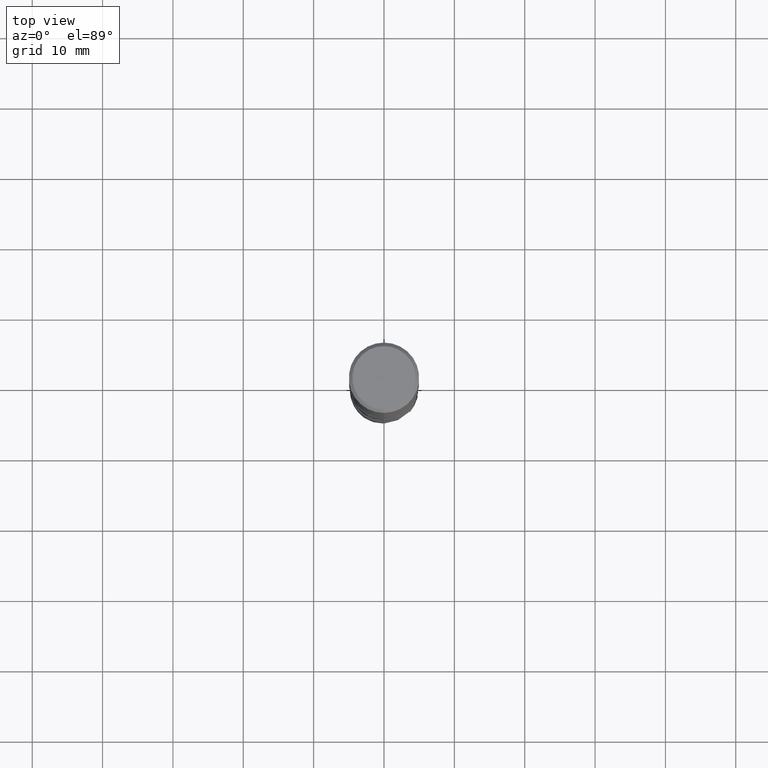
[diagram: clean part render]
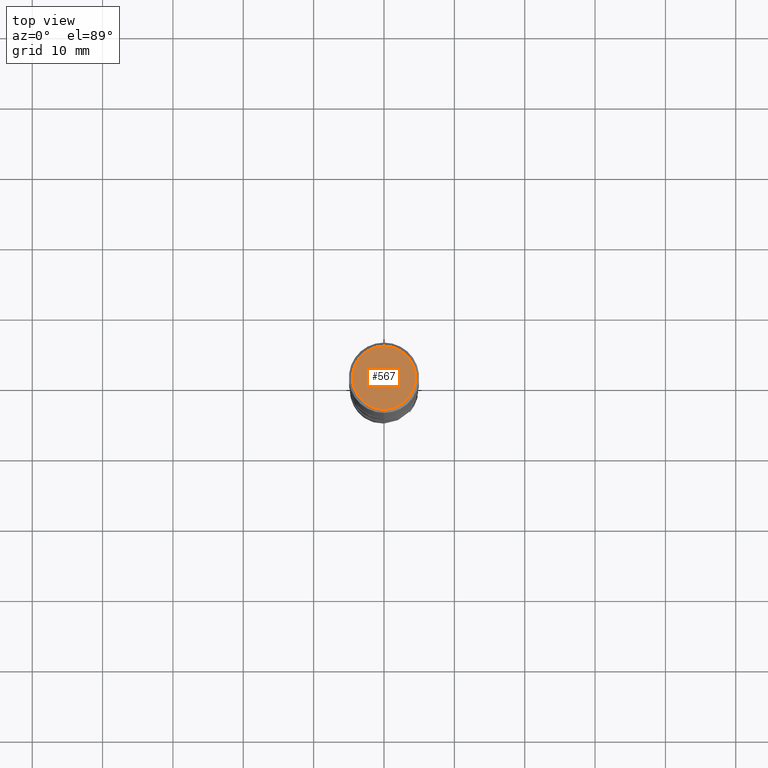
[diagram: same view with one face highlighted and labeled with its STEP entity id]
A machine part, top view. The second image highlights one B-rep face of the part: STEP entity #567.
In plain terms, the highlighted planar face has unit normal (-0, 0, 1).
Its self-contained STEP definition (entity closure, byte-faithful):
#523=VERTEX_POINT('',#1072);
#567=ADVANCED_FACE('',(#1118),#1119,.T.);
#695=VERTEX_POINT('',#1263);
#701=EDGE_CURVE('',#695,#523,#1269,.T.);
#733=EDGE_CURVE('',#523,#695,#1302,.T.);
#1072=CARTESIAN_POINT('',(5.5107285922007E-016,-4.5,0.0));
#1118=FACE_OUTER_BOUND('',#4465,.T.);
#1119=PLANE('',#4466);
#1263=CARTESIAN_POINT('',(0.0,4.5,0.0));
#1269=CIRCLE('',#7251,4.5);
#1302=CIRCLE('',#7745,4.5);
#4465=EDGE_LOOP('',(#9087,#9088));
#4466=AXIS2_PLACEMENT_3D('',#9089,#9090,#9091);
#7251=AXIS2_PLACEMENT_3D('',#9263,#9264,#9265);
#7745=AXIS2_PLACEMENT_3D('',#9273,#9274,#9275);
#9087=ORIENTED_EDGE('',*,*,#701,.F.);
#9088=ORIENTED_EDGE('',*,*,#733,.F.);
#9089=CARTESIAN_POINT('',(0.0,2.25,0.0));
#9090=DIRECTION('',(-0.0,0.0,1.0));
#9091=DIRECTION('',(0.0,-1.0,0.0));
#9263=CARTESIAN_POINT('',(0.0,0.0,0.0));
#9264=DIRECTION('',(0.0,0.0,-1.0));
#9265=DIRECTION('',(0.0,1.0,0.0));
#9273=CARTESIAN_POINT('',(0.0,0.0,0.0));
#9274=DIRECTION('',(0.0,0.0,-1.0));
#9275=DIRECTION('',(0.0,1.0,0.0));